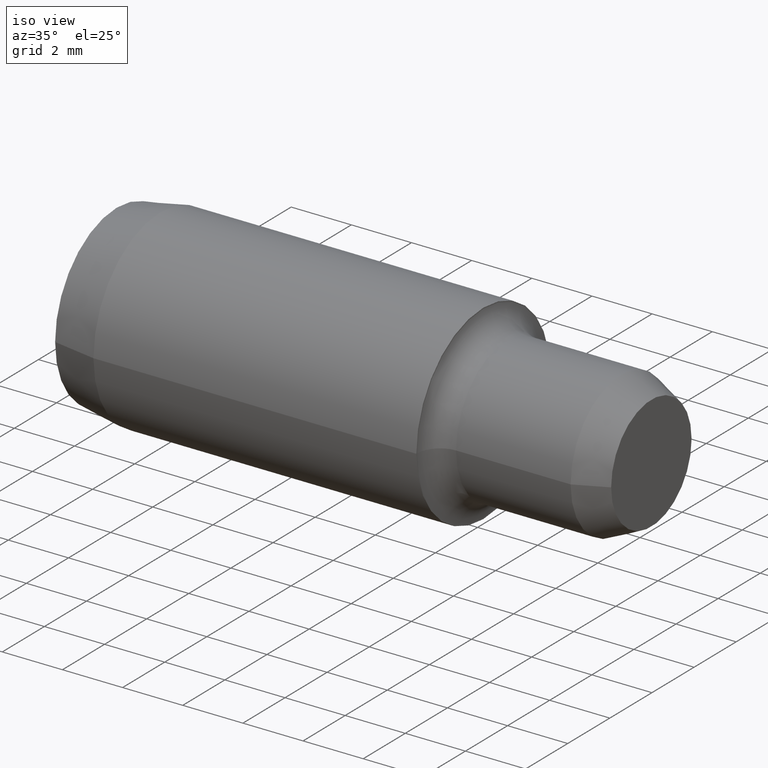
[diagram: clean part render]
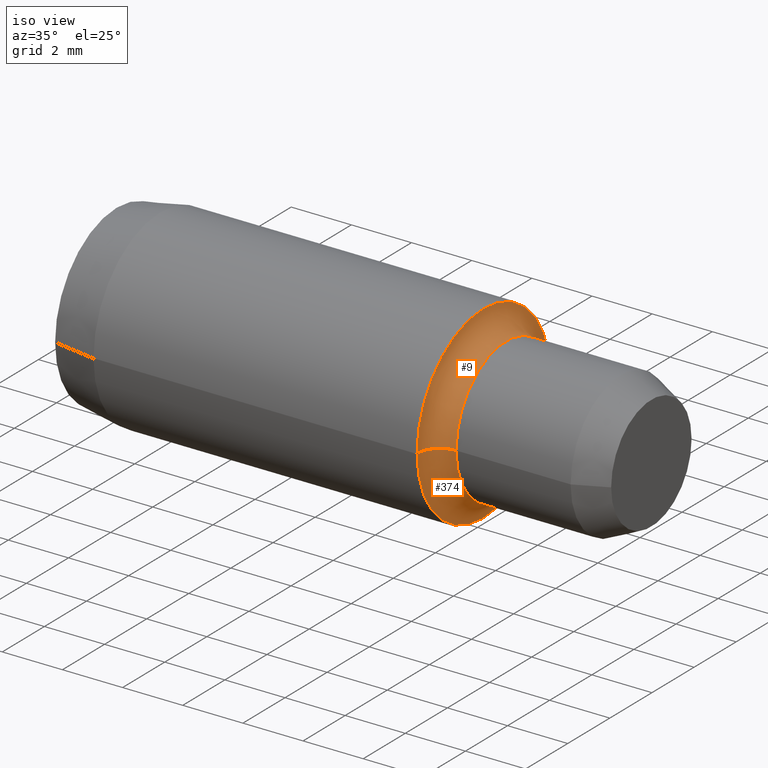
[diagram: same view with one multi-face feature highlighted, each face labeled with its STEP entity id]
A machine part, iso view. The highlighted faces form ONE feature: a constant-radius fillet chain: 2 tangent blend faces with common blend radius 0.762 mm. The faces share edges in the B-rep.
Their STEP definitions:
[1] entity #374 (Torus):
#15 = EDGE_CURVE ( 'NONE', #343, #234, #304, .T. ) ;
#24 = EDGE_CURVE ( 'NONE', #328, #234, #246, .T. ) ;
#41 = EDGE_CURVE ( 'NONE', #256, #343, #262, .T. ) ;
#43 = EDGE_CURVE ( 'NONE', #256, #328, #266, .T. ) ;
#55 = AXIS2_PLACEMENT_3D ( 'NONE', #138, #143, #140 ) ;
#60 = AXIS2_PLACEMENT_3D ( 'NONE', #94, #129, #170 ) ;
#66 = AXIS2_PLACEMENT_3D ( 'NONE', #203, #208, #125 ) ;
#67 = AXIS2_PLACEMENT_3D ( 'NONE', #118, #90, #106 ) ;
#76 = AXIS2_PLACEMENT_3D ( 'NONE', #180, #150, #176 ) ;
#90 = DIRECTION ( 'NONE',  ( -1.499759782661857600E-032, 1.224646799147353200E-016, 1.000000000000000000 ) ) ;
#94 = CARTESIAN_POINT ( 'NONE',  ( 0.4799999999999999800, 5.878304635907294700E-017, 0.0000000000000000000 ) ) ;
#98 = CARTESIAN_POINT ( 'NONE',  ( 0.4799999999999999300, -0.1238499999999999300, 1.516725060743996900E-017 ) ) ;
#106 = DIRECTION ( 'NONE',  ( 0.0000000000000000000, -1.000000000000000000, 1.224646799147353500E-016 ) ) ;
#107 = CARTESIAN_POINT ( 'NONE',  ( 0.4799999999999999300, 0.1238500000000000700, 0.0000000000000000000 ) ) ;
#109 = CARTESIAN_POINT ( 'NONE',  ( 0.5100000000000000100, -0.09384999999999994700, 1.149331020999791300E-017 ) ) ;
#118 = CARTESIAN_POINT ( 'NONE',  ( 0.5100000000000000100, -0.1238499999999999300, 1.516725060743996900E-017 ) ) ;
#125 = DIRECTION ( 'NONE',  ( 0.0000000000000000000, 1.000000000000000000, 0.0000000000000000000 ) ) ;
#129 = DIRECTION ( 'NONE',  ( 1.000000000000000000, 1.224646799147353200E-016, -0.0000000000000000000 ) ) ;
#138 = CARTESIAN_POINT ( 'NONE',  ( 0.5100000000000000100, 0.1238500000000000700, 0.0000000000000000000 ) ) ;
#140 = DIRECTION ( 'NONE',  ( -1.000000000000000000, 0.0000000000000000000, 0.0000000000000000000 ) ) ;
#143 = DIRECTION ( 'NONE',  ( -0.0000000000000000000, 0.0000000000000000000, -1.000000000000000000 ) ) ;
#150 = DIRECTION ( 'NONE',  ( 1.000000000000000000, 1.224646799147353200E-016, -0.0000000000000000000 ) ) ;
#170 = DIRECTION ( 'NONE',  ( 0.0000000000000000000, 1.000000000000000000, 0.0000000000000000000 ) ) ;
#176 = DIRECTION ( 'NONE',  ( -1.224646799147353200E-016, 1.000000000000000000, 0.0000000000000000000 ) ) ;
#180 = CARTESIAN_POINT ( 'NONE',  ( 0.5100000000000000100, 6.829619984160658000E-017, 0.0000000000000000000 ) ) ;
#181 = CARTESIAN_POINT ( 'NONE',  ( 0.5100000000000000100, 0.09385000000000008600, 0.0000000000000000000 ) ) ;
#203 = CARTESIAN_POINT ( 'NONE',  ( 0.5100000000000000100, 6.245698675651501100E-017, 0.0000000000000000000 ) ) ;
#208 = DIRECTION ( 'NONE',  ( 1.000000000000000000, 1.224646799147353200E-016, -0.0000000000000000000 ) ) ;
#234 = VERTEX_POINT ( 'NONE', #107 ) ;
#243 = EDGE_LOOP ( 'NONE', ( #350, #349, #325, #366 ) ) ;
#246 = CIRCLE ( 'NONE', #60, 0.1238500000000000000 ) ;
#256 = VERTEX_POINT ( 'NONE', #109 ) ;
#257 = FACE_OUTER_BOUND ( 'NONE', #243, .T. ) ;
#261 = TOROIDAL_SURFACE ( 'NONE', #76, 0.1238500000000000000, 0.02999999999999998800 ) ;
#262 = CIRCLE ( 'NONE', #66, 0.09385000000000001700 ) ;
#266 = CIRCLE ( 'NONE', #67, 0.02999999999999998800 ) ;
#304 = CIRCLE ( 'NONE', #55, 0.03000000000000002300 ) ;
#325 = ORIENTED_EDGE ( 'NONE', *, *, #24, .T. ) ;
#328 = VERTEX_POINT ( 'NONE', #98 ) ;
#343 = VERTEX_POINT ( 'NONE', #181 ) ;
#349 = ORIENTED_EDGE ( 'NONE', *, *, #43, .T. ) ;
#350 = ORIENTED_EDGE ( 'NONE', *, *, #41, .F. ) ;
#366 = ORIENTED_EDGE ( 'NONE', *, *, #15, .F. ) ;
#374 = ADVANCED_FACE ( 'NONE', ( #257 ), #261, .F. ) ;
[2] entity #9 (Torus):
#9 = ADVANCED_FACE ( 'NONE', ( #277 ), #236, .F. ) ;
#15 = EDGE_CURVE ( 'NONE', #343, #234, #304, .T. ) ;
#16 = EDGE_CURVE ( 'NONE', #343, #256, #369, .T. ) ;
#28 = EDGE_CURVE ( 'NONE', #234, #328, #299, .T. ) ;
#43 = EDGE_CURVE ( 'NONE', #256, #328, #266, .T. ) ;
#50 = AXIS2_PLACEMENT_3D ( 'NONE', #212, #193, #198 ) ;
#55 = AXIS2_PLACEMENT_3D ( 'NONE', #138, #143, #140 ) ;
#56 = AXIS2_PLACEMENT_3D ( 'NONE', #127, #156, #164 ) ;
#63 = AXIS2_PLACEMENT_3D ( 'NONE', #155, #216, #171 ) ;
#67 = AXIS2_PLACEMENT_3D ( 'NONE', #118, #90, #106 ) ;
#90 = DIRECTION ( 'NONE',  ( -1.499759782661857600E-032, 1.224646799147353200E-016, 1.000000000000000000 ) ) ;
#98 = CARTESIAN_POINT ( 'NONE',  ( 0.4799999999999999300, -0.1238499999999999300, 1.516725060743996900E-017 ) ) ;
#106 = DIRECTION ( 'NONE',  ( 0.0000000000000000000, -1.000000000000000000, 1.224646799147353500E-016 ) ) ;
#107 = CARTESIAN_POINT ( 'NONE',  ( 0.4799999999999999300, 0.1238500000000000700, 0.0000000000000000000 ) ) ;
#109 = CARTESIAN_POINT ( 'NONE',  ( 0.5100000000000000100, -0.09384999999999994700, 1.149331020999791300E-017 ) ) ;
#118 = CARTESIAN_POINT ( 'NONE',  ( 0.5100000000000000100, -0.1238499999999999300, 1.516725060743996900E-017 ) ) ;
#127 = CARTESIAN_POINT ( 'NONE',  ( 0.5100000000000000100, 6.245698675651501100E-017, 0.0000000000000000000 ) ) ;
#138 = CARTESIAN_POINT ( 'NONE',  ( 0.5100000000000000100, 0.1238500000000000700, 0.0000000000000000000 ) ) ;
#140 = DIRECTION ( 'NONE',  ( -1.000000000000000000, 0.0000000000000000000, 0.0000000000000000000 ) ) ;
#143 = DIRECTION ( 'NONE',  ( -0.0000000000000000000, 0.0000000000000000000, -1.000000000000000000 ) ) ;
#155 = CARTESIAN_POINT ( 'NONE',  ( 0.4799999999999999800, 5.878304635907294700E-017, 0.0000000000000000000 ) ) ;
#156 = DIRECTION ( 'NONE',  ( 1.000000000000000000, 1.224646799147353200E-016, -0.0000000000000000000 ) ) ;
#164 = DIRECTION ( 'NONE',  ( 0.0000000000000000000, 1.000000000000000000, 0.0000000000000000000 ) ) ;
#171 = DIRECTION ( 'NONE',  ( 0.0000000000000000000, 1.000000000000000000, 0.0000000000000000000 ) ) ;
#181 = CARTESIAN_POINT ( 'NONE',  ( 0.5100000000000000100, 0.09385000000000008600, 0.0000000000000000000 ) ) ;
#193 = DIRECTION ( 'NONE',  ( 1.000000000000000000, 1.224646799147353200E-016, -0.0000000000000000000 ) ) ;
#198 = DIRECTION ( 'NONE',  ( -1.224646799147353200E-016, 1.000000000000000000, 0.0000000000000000000 ) ) ;
#212 = CARTESIAN_POINT ( 'NONE',  ( 0.5100000000000000100, 6.829619984160658000E-017, 0.0000000000000000000 ) ) ;
#216 = DIRECTION ( 'NONE',  ( 1.000000000000000000, 1.224646799147353200E-016, -0.0000000000000000000 ) ) ;
#230 = ORIENTED_EDGE ( 'NONE', *, *, #28, .T. ) ;
#234 = VERTEX_POINT ( 'NONE', #107 ) ;
#236 = TOROIDAL_SURFACE ( 'NONE', #50, 0.1238500000000000000, 0.02999999999999998800 ) ;
#256 = VERTEX_POINT ( 'NONE', #109 ) ;
#266 = CIRCLE ( 'NONE', #67, 0.02999999999999998800 ) ;
#277 = FACE_OUTER_BOUND ( 'NONE', #337, .T. ) ;
#299 = CIRCLE ( 'NONE', #63, 0.1238500000000000000 ) ;
#304 = CIRCLE ( 'NONE', #55, 0.03000000000000002300 ) ;
#317 = ORIENTED_EDGE ( 'NONE', *, *, #15, .T. ) ;
#327 = ORIENTED_EDGE ( 'NONE', *, *, #43, .F. ) ;
#328 = VERTEX_POINT ( 'NONE', #98 ) ;
#337 = EDGE_LOOP ( 'NONE', ( #327, #358, #317, #230 ) ) ;
#343 = VERTEX_POINT ( 'NONE', #181 ) ;
#358 = ORIENTED_EDGE ( 'NONE', *, *, #16, .F. ) ;
#369 = CIRCLE ( 'NONE', #56, 0.09385000000000001700 ) ;